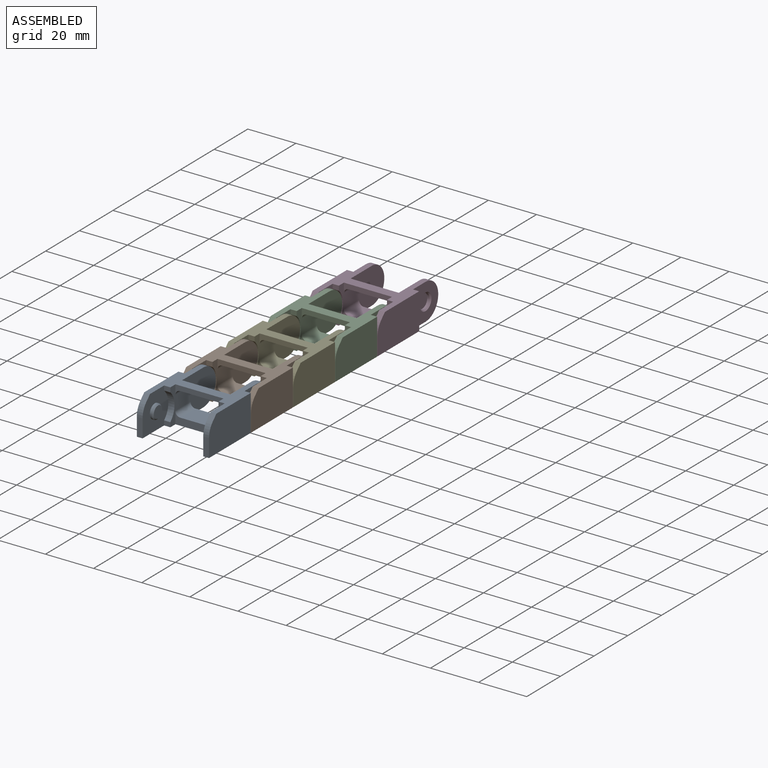
[diagram: assembled view]
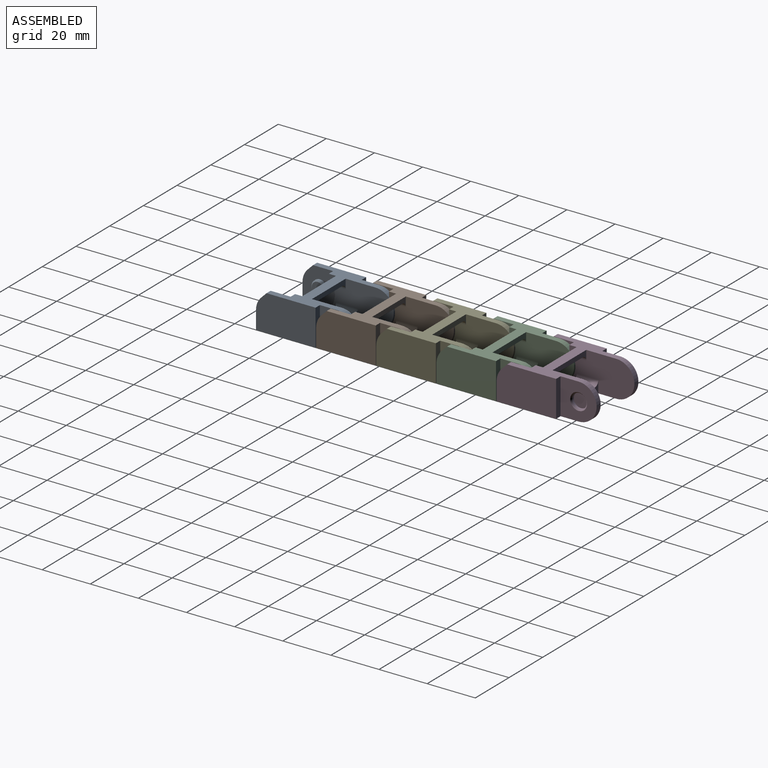
[diagram: assembled view, second angle]
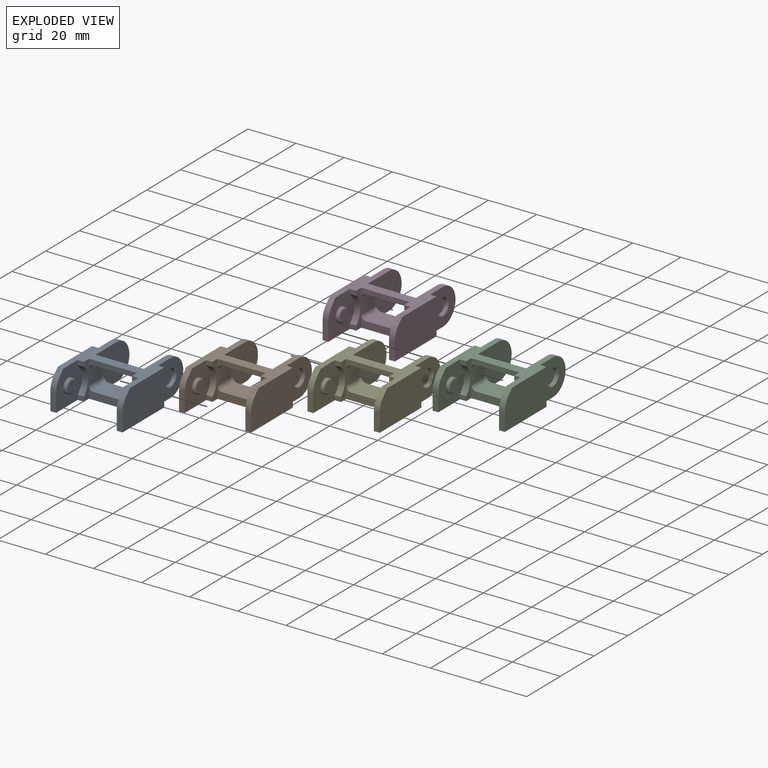
[diagram: exploded view]
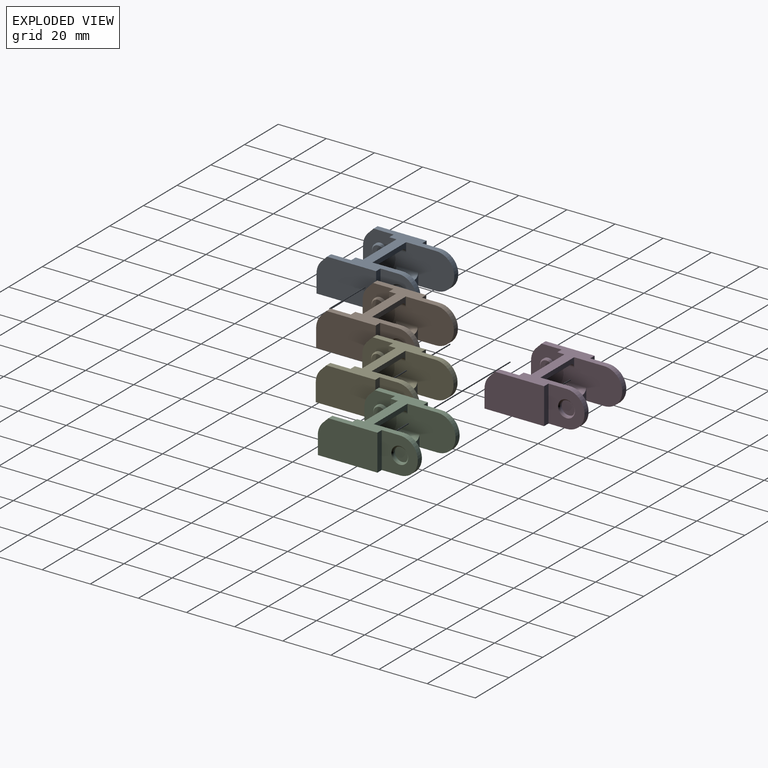
[diagram: exploded view, second angle]
ASSEMBLY  parts=5 mates=4
PART A: 48 faces, bbox 30x39.8x15 mm
  f0: plane 24.75x15mm, normal (-1,0,0), area 360.4mm2, adj f4,f15,f22,f42,f43,f44
  f1: plane 15.27x15mm, normal (-1,0,0), area 172.7mm2, adj f4,f6,f15,f30,f31,f32,f45,f46
  f2: plane 15.25x15mm, normal (1,0,0), area 172.4mm2, adj f3,f4,f15,f34,f35,f36,f42,f43
  f3: cylinder r=2.95mm len=5.9mm, axis (1,0,0), area 14.8mm2, adj f2,f39
  f4: plane 32.25x30mm, normal (0,0,-1), area 397.2mm2, adj f0,f1,f2,f5,f7,f8,f16,f19
  f5: plane 27x15mm, normal (1,0,0), area 300.5mm2, adj f4,f10,f14,f15,f16,f17,f18,f19
  f6: cylinder r=2.95mm len=5.9mm, axis (-1,0,0), area 14.8mm2, adj f1,f38
  f7: plane 27x15mm, normal (-1,0,0), area 300.2mm2, adj f4,f9,f12,f15,f16,f17,f18,f19
  f8: plane 24.75x15mm, normal (1,0,0), area 360.4mm2, adj f4,f15,f26,f45,f46,f47
  f9: cylinder r=2mm len=4mm, axis (0,1,0), area 12.6mm2, adj f7,f11,f17,f18
  f10: cylinder r=2mm len=4mm, axis (0,1,0), area 12.6mm2, adj f5,f11,f17,f18
  f11: plane 16x4mm, normal (0,0,-1), area 64mm2, adj f9,f10,f17,f18
  f12: cylinder r=2mm len=9mm, axis (0,1,0), area 28.3mm2, adj f7,f13,f16,f19
  f13: plane 16x9mm, normal (0,0,1), area 144mm2, adj f12,f14,f16,f19
  f14: cylinder r=2mm len=9mm, axis (0,1,0), area 28.3mm2, adj f5,f13,f16,f19
  f15: plane 30x27.86mm, normal (0,0,1), area 276.1mm2, adj f0,f1,f2,f5,f7,f8,f17,f18
  f16: plane 20x5mm, normal (0,1,0), area 61.7mm2, adj f4,f5,f7,f12,f13,f14
  f17: plane 20x4mm, normal (0,1,0), area 41.7mm2, adj f5,f7,f9,f10,f11,f15
  f18: plane 20x4mm, normal (0,-1,0), area 41.7mm2, adj f5,f7,f9,f10,f11,f15
  f19: plane 20x5mm, normal (0,-1,0), area 61.7mm2, adj f4,f5,f7,f12,f13,f14
  f20: cylinder r=7.5mm len=15mm, axis (-1,0,0), area 56.5mm2, adj f4,f7,f15,f27
  f21: cylinder r=7.5mm len=15mm, axis (-1,0,0), area 56.5mm2, adj f4,f5,f15,f23
  f22: plane 15x2.6mm, normal (0,1,0), area 39mm2, adj f0,f4,f15,f23
  f23: plane 15x15mm, normal (-1,0,0), area 162.4mm2, adj f4,f15,f21,f22,f41
  f24: cylinder r=3mm len=6mm, axis (-1,0,0), area 17mm2, adj f25,f41
  f25: plane 6x6mm, normal (-1,0,0), area 28.3mm2, adj f24
  f26: plane 15x2.6mm, normal (0,1,0), area 39mm2, adj f4,f8,f15,f27
  f27: plane 15x15mm, normal (1,0,0), area 162.4mm2, adj f4,f15,f20,f26,f40
  f28: plane 6x6mm, normal (1,0,0), area 28.3mm2, adj f29
  f29: cylinder r=3mm len=6mm, axis (1,0,0), area 17mm2, adj f28,f40
  f30: plane 2.6x1.88mm, normal (0,-1,0), area 4.9mm2, adj f1,f7,f15,f31
  f31: cylinder r=7.52mm len=11.24mm, axis (-1,0,0), area 33mm2, adj f1,f7,f30,f32
  f32: plane 2.6x1.88mm, normal (0,-1,0), area 4.9mm2, adj f1,f4,f7,f31
  f33: plane 4.9x4.9mm, normal (-1,0,0), area 18.9mm2, adj f38
  f34: plane 2.6x1.91mm, normal (0,-1,0), area 5mm2, adj f2,f4,f5,f35
  f35: cylinder r=7.5mm len=11.18mm, axis (1,0,0), area 32.8mm2, adj f2,f5,f34,f36
  f36: plane 2.6x1.91mm, normal (0,-1,0), area 5mm2, adj f2,f5,f15,f35
  f37: plane 4.9x4.9mm, normal (1,0,0), area 18.9mm2, adj f39
  f38: cone r=2.45mm half-angle=45deg, axis (1,0,0), area 12mm2, adj f6,f33
  f39: cone r=2.45mm half-angle=45deg, axis (-1,0,0), area 12mm2, adj f3,f37
  f40: cone r=3mm half-angle=45deg, axis (1,0,0), area 14.4mm2, adj f27,f29
  f41: cone r=3mm half-angle=45deg, axis (-1,0,0), area 14.4mm2, adj f23,f24
  f42: plane 2.4x2.2mm, normal (0,-0.71,0.71), area 7.5mm2, adj f0,f2,f15,f43
  f43: cylinder r=7.5mm len=5.3mm, axis (1,0,0), area 14.1mm2, adj f0,f2,f42,f44
  f44: plane 7.5x2.4mm, normal (0,-1,0), area 18mm2, adj f0,f2,f4,f43
  f45: plane 7.5x2.4mm, normal (0,-1,0), area 18mm2, adj f1,f4,f8,f46
  f46: cylinder r=7.5mm len=5.3mm, axis (1,0,0), area 14.1mm2, adj f1,f8,f45,f47
  f47: plane 2.4x2.2mm, normal (0,-0.71,0.71), area 7.5mm2, adj f1,f8,f15,f46
PART B: same geometry as A
PART C: same geometry as A
PART D: same geometry as A
PART E: same geometry as A
PLACE A t=(8.87,11.29,30.58)mm fixed
PLACE B rot(axis=(1,0,0),0deg) t=(8.87,36.29,30.58)mm
PLACE C rot(axis=(-1,0,0.02),0deg) t=(8.87,86.29,30.58)mm
PLACE D rot(axis=(-1,0,0.03),0deg) t=(8.87,111.29,30.58)mm
PLACE E rot(axis=(0.99,0.05,-0.13),0deg) t=(8.87,61.29,30.58)mm
MATE revolute E.f3 <-> B.f24  axis (1,0,0) through (-2.43,48.79,30.58)mm
MATE revolute C.f3 <-> E.f24  axis (1,0,0) through (-2.43,73.79,30.58)mm
MATE revolute B.f3 <-> A.f24  axis (1,0,0) through (-2.43,23.79,30.58)mm
MATE revolute D.f3 <-> C.f24  axis (1,0,0) through (-2.43,98.79,30.58)mm
